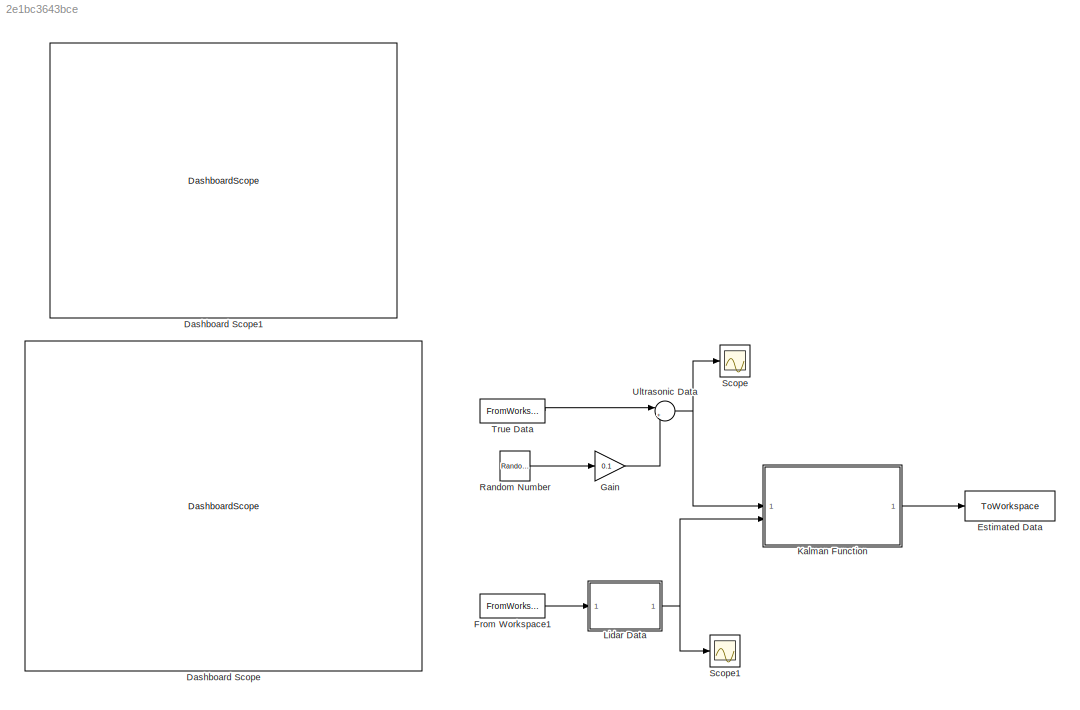
MODEL slx_2e1bc3643bce
KIND model
CONFIG AbsTol = auto
CONFIG EnableMultiTasking = off
CONFIG FixedStep = auto
CONFIG MaxStep = auto
CONFIG MinStep = auto
CONFIG RelTol = 1e-3
CONFIG SampleTimeConstraint = Unconstrained
CONFIG SolverName = VariableStepAuto
CONFIG StartTime = 0.0
CONFIG StopTime = 10.0
BLOCK [DashboardScope] Dashboard Scope
BLOCK [DashboardScope] Dashboard Scope1
BLOCK [ToWorkspace] Estimated Data
  FixptAsFi = on
  MaxDataPoints = inf
  SampleTime = -1
  SaveFormat = Timeseries
  VariableName = estimated_distance
BLOCK [FromWorkspace] From Workspace1
  SampleTime = 0.1
  VariableName = true_data
BLOCK [Gain] Gain
  Gain = 0.1
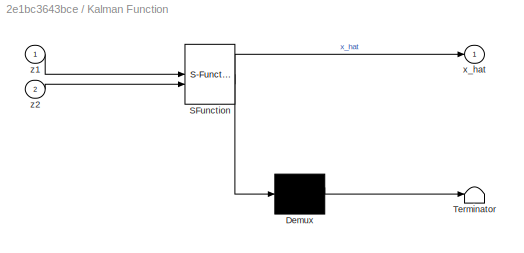
BLOCK [SubSystem] Kalman Function
  ErrorFcn = Stateflow.Translate.translate
  PermitHierarchicalResolution = ExplicitOnly
  SFBlockType = MATLAB Function
  TreatAsAtomicUnit = on
BLOCK [Demux] Kalman Function/ Demux 
  Outputs = 1
BLOCK [S-Function] Kalman Function/ SFunction 
  EnableBusSupport = on
  FunctionName = sf_sfun
  PortCounts = [2 2]
  SFcnIsStateOwnerBlock = off
  SFunctionDeploymentMode = off
  Tag = Stateflow S-Function 1
BLOCK [Terminator] Kalman Function/ Terminator 
BLOCK [Outport] Kalman Function/x_hat
BLOCK [Inport] Kalman Function/z1
BLOCK [Inport] Kalman Function/z2
  Port = 2
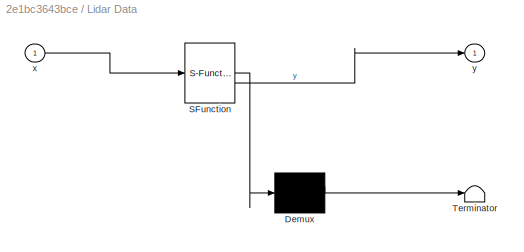
BLOCK [SubSystem] Lidar Data
  ErrorFcn = Stateflow.Translate.translate
  PermitHierarchicalResolution = ExplicitOnly
  SFBlockType = MATLAB Function
  TreatAsAtomicUnit = on
BLOCK [Demux] Lidar Data/ Demux 
  Outputs = 1
BLOCK [S-Function] Lidar Data/ SFunction 
  EnableBusSupport = on
  FunctionName = sf_sfun
  PortCounts = [1 2]
  SFcnIsStateOwnerBlock = off
  SFunctionDeploymentMode = off
  Tag = Stateflow S-Function 2
BLOCK [Terminator] Lidar Data/ Terminator 
BLOCK [Inport] Lidar Data/x
BLOCK [Outport] Lidar Data/y
BLOCK [RandomNumber] Random Number
  SampleTime = 0.1
BLOCK [Scope] Scope
  Floating = off
  NumInputPorts = 1
  ScopeSpecificationString = Simulink.scopes.TimeScopeBlockCfg('CurrentConfiguration', extmgr.ConfigurationSet(extmgr.Configuration('Core','General UI',true),extmgr.Configuration('Core','Source UI',true),extmgr.Configuration('Sources','WiredSimulink',true),extmgr.Configuration('Visuals','Time Domain',true,'SerializedDisplays',{struct('MinYLimReal','1.5961','MaxYLimReal','5.50765','YLabelReal','','MinYLimMag','1.5961','MaxYLim...<+1418ch>
BLOCK [Scope] Scope1
  Floating = off
  NumInputPorts = 1
  ScopeSpecificationString = Simulink.scopes.TimeScopeBlockCfg('CurrentConfiguration', extmgr.ConfigurationSet(extmgr.Configuration('Core','General UI',true),extmgr.Configuration('Core','Source UI',true),extmgr.Configuration('Sources','WiredSimulink',true,'DataLoggingVariableName','ScopeData1'),extmgr.Configuration('Visuals','Time Domain',true,'SerializedDisplays',{struct('MinYLimReal','1.29132','MaxYLimReal','5.89189','YLabe...<+1456ch>
BLOCK [FromWorkspace] True Data
  SampleTime = 0.1
  VariableName = true_data
BLOCK [Sum] Ultrasonic Data
  Inputs = |++
LINE From Workspace1:1 -> Lidar Data:1
LINE Gain:1 -> Ultrasonic Data:2
LINE Kalman Function:1 -> Estimated Data:1
NET Lidar Data:1 -> Kalman Function:2, Scope1:1
LINE Random Number:1 -> Gain:1
LINE True Data:1 -> Ultrasonic Data:1
NET Ultrasonic Data:1 -> Kalman Function:1, Scope:1
note: NET lines group one-source signal fan-out (src -> all destinations, sorted); 1:1 wires keep LINE
CHART Lidar Data states=1 transitions=1
  STATE_LABEL 'eML_blk_kernel()'
  STATE_LABEL 'SCRIPT:\nfunction y = lidar_noise_model(x)\n% x: true distance\n% y: noisy LiDAR reading\n\n% Add small Gaussian noise\nnoise = 0.05 * randn();\n\n% Random spike (5% chance)\nif rand() < 0.05\n    spike = 2 * (rand() - 0.5);  % Random spike between -1 and 1\nelse\n    spike = 0;\nend\n\ny = x + noise + spike;\n'
CHART Kalman Function states=1 transitions=1
  STATE_LABEL 'eML_blk_kernel()'
  STATE_LABEL 'SCRIPT:\nfunction x_hat = kalmanFusion(z1, z2)\n\n%#codegen\n\npersistent x P Q R1 R2 H I\n\nif isempty(x)\n    x = 0;                      % Initial estimate\n    P = 1;                      % Initial error covariance\n    Q = 0.01;                   % Process noise (decreasing this makes filter less responsive to change)\n    R1 = 0.05;                  % LiDAR noise\n    R2 = 0.2;                   % Ultra...<+526ch>'
CHART  states=0 transitions=0
CHART  states=0 transitions=0
